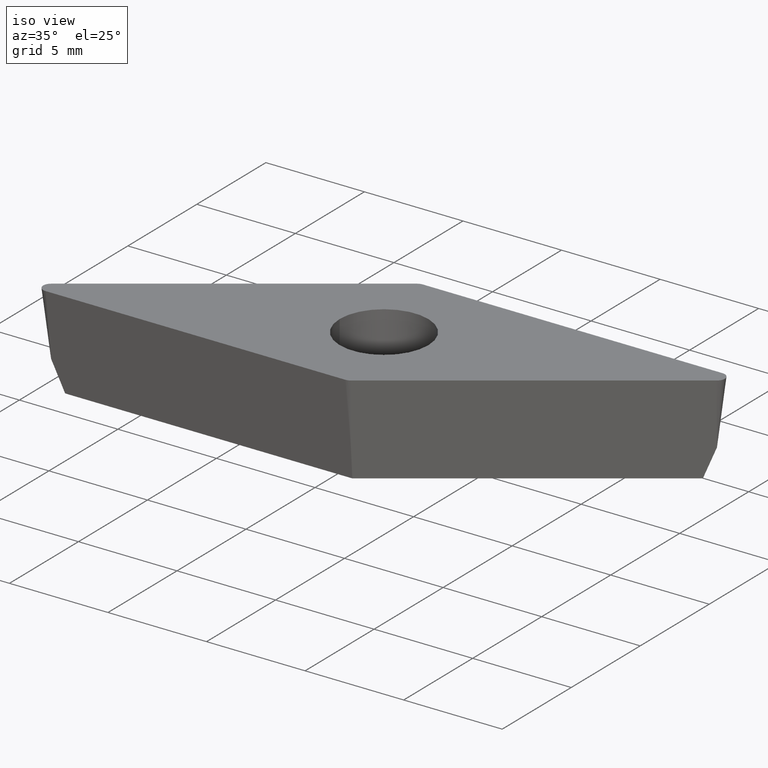
[diagram: clean part render]
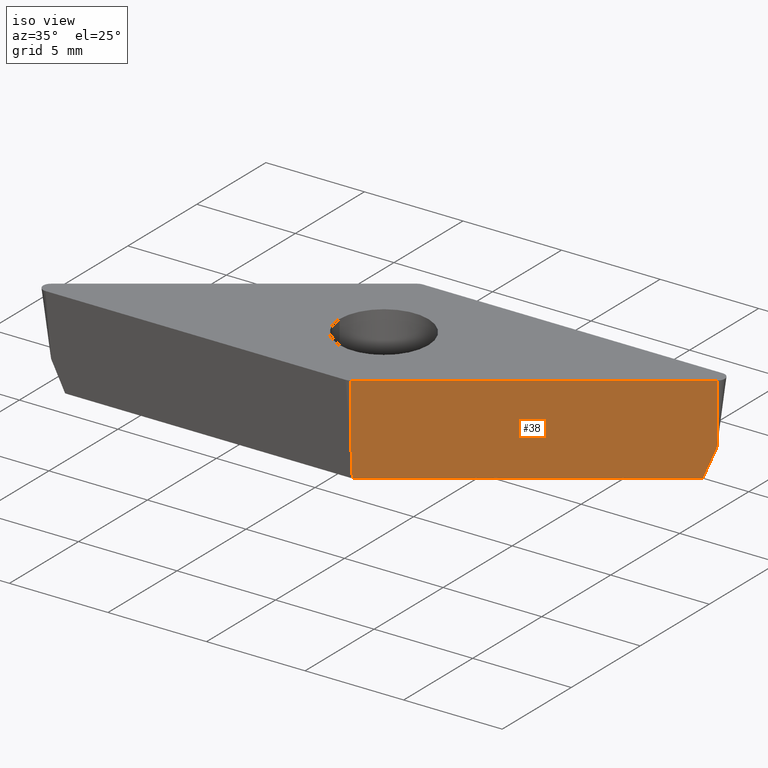
[diagram: same view with one face highlighted and labeled with its STEP entity id]
A machine part, iso view. The second image highlights one B-rep face of the part: STEP entity #38.
In plain terms, the highlighted face is a freeform B-spline surface patch.
Its self-contained STEP definition (entity closure, byte-faithful):
#1 = VECTOR ( 'NONE', #101, 1000.000000000000000 ) ;
#18 = EDGE_CURVE ( 'NONE', #356, #384, #289, .T. ) ;
#23 = CARTESIAN_POINT ( 'NONE',  ( 5.295244242093428300, -1.392681830040321400, -4.759999999999998900 ) ) ;
#29 = B_SPLINE_CURVE_WITH_KNOTS ( 'NONE', 3,
 ( #283, #23, #405, #441 ),
 .UNSPECIFIED., .F., .F.,
 ( 4, 4 ),
 ( 0.0000000000000000000, 0.01456840004335603300 ),
 .UNSPECIFIED. ) ;
#30 = CARTESIAN_POINT ( 'NONE',  ( 13.83608232530964300, 4.362500000000005200, -3.257738571189814800 ) ) ;
#38 = ADVANCED_FACE ( 'NONE', ( #295 ), #336, .T. ) ;
#39 = CARTESIAN_POINT ( 'NONE',  ( 1.202646339029181300, -4.115652289823526800, -5.711999999999998900 ) ) ;
#51 = VERTEX_POINT ( 'NONE', #331 ) ;
#56 = CARTESIAN_POINT ( 'NONE',  ( 13.25106736044576300, 4.178045490102176600, -4.760000000000000700 ) ) ;
#65 = CARTESIAN_POINT ( 'NONE',  ( 5.356176791975568300, -1.207318956496878500, -5.711999999999998900 ) ) ;
#72 = CARTESIAN_POINT ( 'NONE',  ( 9.911982446906366200, 1.126505848953926600, 0.0000000000000000000 ) ) ;
#74 = CARTESIAN_POINT ( 'NONE',  ( 14.06551289985006300, 4.034839182284407900, 0.0000000000000000000 ) ) ;
#84 = CARTESIAN_POINT ( 'NONE',  ( 1.375490966484557400, -4.362500000000007800, -3.257738571189773100 ) ) ;
#101 = DIRECTION ( 'NONE',  ( 0.06990138369076599700, -0.09982952178648427100, 0.9925461516413219800 ) ) ;
#122 = EDGE_CURVE ( 'NONE', #356, #369, #276, .T. ) ;
#125 = CARTESIAN_POINT ( 'NONE',  ( 1.604921541024970200, -4.690160817715599800, 0.0000000000000000000 ) ) ;
#129 = CARTESIAN_POINT ( 'NONE',  ( 15.10472024625493900, 4.762500000000003700, 0.0000000000000000000 ) ) ;
#130 = EDGE_CURVE ( 'NONE', #51, #404, #29, .T. ) ;
#133 = LINE ( 'NONE', #74, #1 ) ;
#151 = CARTESIAN_POINT ( 'NONE',  ( 5.758451993971353200, -1.781827484388953700, 0.0000000000000000000 ) ) ;
#155 = CARTESIAN_POINT ( 'NONE',  ( 1.604921541024971800, -4.690160817715598000, 0.0000000000000000000 ) ) ;
#172 = EDGE_CURVE ( 'NONE', #404, #421, #376, .T. ) ;
#179 = CARTESIAN_POINT ( 'NONE',  ( 1.356104871959926900, -4.301015163367396500, -3.758492380793182700 ) ) ;
#194 = EDGE_LOOP ( 'NONE', ( #429, #433, #438, #445, #449, #451 ) ) ;
#200 = CARTESIAN_POINT ( 'NONE',  ( 1.375490966484557400, -4.362500000000007800, -3.257738571189773100 ) ) ;
#218 = CARTESIAN_POINT ( 'NONE',  ( 1.336718777435298700, -4.239530326734785200, -4.259246190396591900 ) ) ;
#237 = CARTESIAN_POINT ( 'NONE',  ( 1.604921541024970200, -4.690160817715599800, 0.0000000000000000000 ) ) ;
#238 = CARTESIAN_POINT ( 'NONE',  ( 1.317332682910668200, -4.178045490102174000, -4.760000000000001600 ) ) ;
#272 = VECTOR ( 'NONE', #320, 1000.000000000000000 ) ;
#276 = LINE ( 'NONE', #125, #272 ) ;
#283 = CARTESIAN_POINT ( 'NONE',  ( 1.317332682910668200, -4.178045490102174000, -4.760000000000001600 ) ) ;
#287 = VECTOR ( 'NONE', #371, 1000.000000000000100 ) ;
#289 = LINE ( 'NONE', #129, #287 ) ;
#295 = FACE_OUTER_BOUND ( 'NONE', #194, .T. ) ;
#314 = CARTESIAN_POINT ( 'NONE',  ( 13.44607234873361700, 4.239530326734791500, -4.259246190396564400 ) ) ;
#320 = DIRECTION ( 'NONE',  ( -0.06990138369076599700, 0.09982952178648427100, -0.9925461516413219800 ) ) ;
#331 = CARTESIAN_POINT ( 'NONE',  ( 1.317332682910668200, -4.178045490102174000, -4.760000000000001600 ) ) ;
#336 = B_SPLINE_SURFACE_WITH_KNOTS ( 'NONE', 1, 3, ( 
 ( #237, #151, #72, #342 ),
 ( #39, #65, #338, #400 ) ),
 .UNSPECIFIED., .F., .F., .F.,
 ( 2, 2 ),
 ( 4, 4 ),
 ( 0.0000000000000000000, 1.000000000000000000 ),
 ( -0.01648021121273949400, -0.001268637920945296100 ),
 .UNSPECIFIED. ) ;
#338 = CARTESIAN_POINT ( 'NONE',  ( 9.509707244914709500, 1.701014376840096300, -5.711999999999998900 ) ) ;
#342 = CARTESIAN_POINT ( 'NONE',  ( 14.06551289985006300, 4.034839182284407900, 0.0000000000000000000 ) ) ;
#356 = VERTEX_POINT ( 'NONE', #155 ) ;
#369 = VERTEX_POINT ( 'NONE', #200 ) ;
#371 = DIRECTION ( 'NONE',  ( 0.8191520442889945700, 0.5735764363510419400, -0.0000000000000000000 ) ) ;
#376 = B_SPLINE_CURVE_WITH_KNOTS ( 'NONE', 3,
 ( #56, #314, #475, #30 ),
 .UNSPECIFIED., .F., .F.,
 ( 4, 4 ),
 ( 8.673617379884035500E-019, 0.001622669213310943800 ),
 .UNSPECIFIED. ) ;
#380 = EDGE_CURVE ( 'NONE', #51, #369, #453, .T. ) ;
#384 = VERTEX_POINT ( 'NONE', #462 ) ;
#400 = CARTESIAN_POINT ( 'NONE',  ( 13.66323769785427400, 4.609347710176481700, -5.711999999999998900 ) ) ;
#404 = VERTEX_POINT ( 'NONE', #423 ) ;
#405 = CARTESIAN_POINT ( 'NONE',  ( 9.273155801268940100, 1.392681830031856200, -4.759999999999998900 ) ) ;
#407 = EDGE_CURVE ( 'NONE', #421, #384, #133, .T. ) ;
#421 = VERTEX_POINT ( 'NONE', #470 ) ;
#423 = CARTESIAN_POINT ( 'NONE',  ( 13.25106736044576300, 4.178045490102176600, -4.760000000000000700 ) ) ;
#429 = ORIENTED_EDGE ( 'NONE', *, *, #18, .F. ) ;
#433 = ORIENTED_EDGE ( 'NONE', *, *, #122, .T. ) ;
#438 = ORIENTED_EDGE ( 'NONE', *, *, #380, .F. ) ;
#441 = CARTESIAN_POINT ( 'NONE',  ( 13.25106736044576300, 4.178045490102176600, -4.760000000000000700 ) ) ;
#445 = ORIENTED_EDGE ( 'NONE', *, *, #130, .T. ) ;
#449 = ORIENTED_EDGE ( 'NONE', *, *, #172, .T. ) ;
#451 = ORIENTED_EDGE ( 'NONE', *, *, #407, .T. ) ;
#453 = B_SPLINE_CURVE_WITH_KNOTS ( 'NONE', 3,
 ( #238, #218, #179, #84 ),
 .UNSPECIFIED., .F., .F.,
 ( 4, 4 ),
 ( 0.0000000000000000000, 0.001514660111266174600 ),
 .UNSPECIFIED. ) ;
#462 = CARTESIAN_POINT ( 'NONE',  ( 14.06551289985005900, 4.034839182284405200, 0.0000000000000000000 ) ) ;
#470 = CARTESIAN_POINT ( 'NONE',  ( 13.83608232530964300, 4.362500000000005200, -3.257738571189814800 ) ) ;
#475 = CARTESIAN_POINT ( 'NONE',  ( 13.64107733702156900, 4.301015163367401000, -3.758492380793166300 ) ) ;